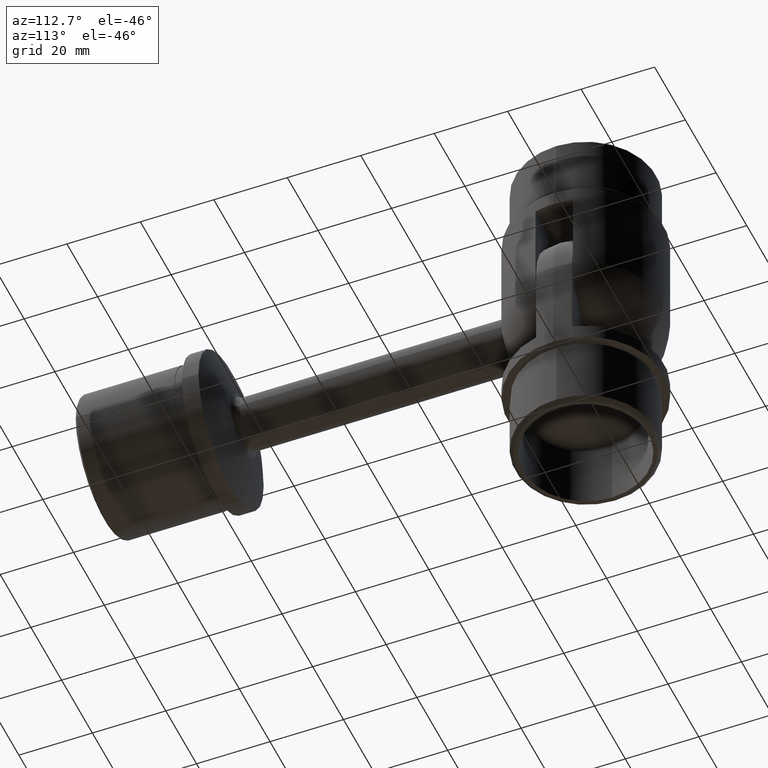
[diagram: clean part render]
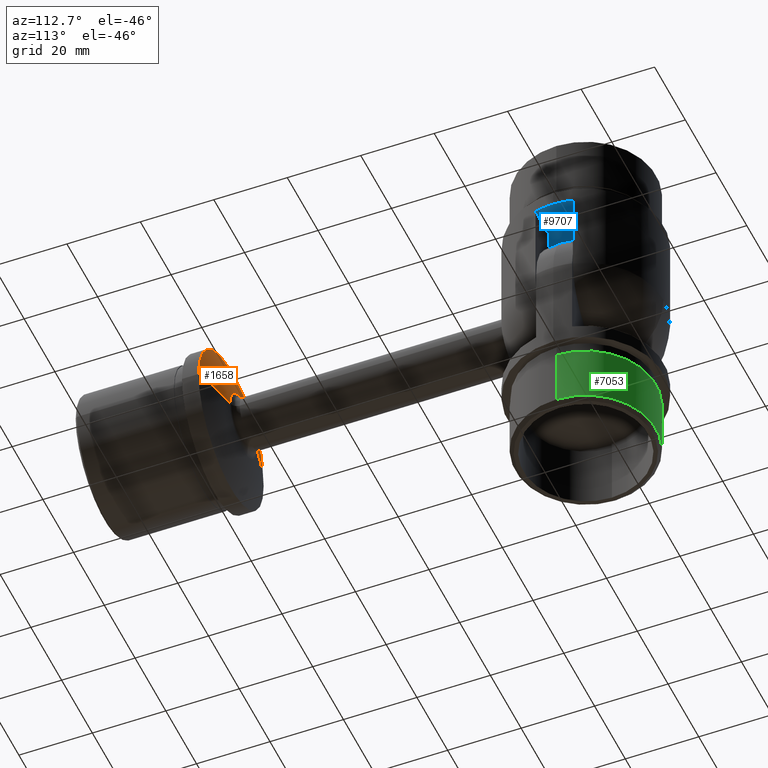
[diagram: same view with three faces highlighted in distinct colors, each labeled with its STEP entity id]
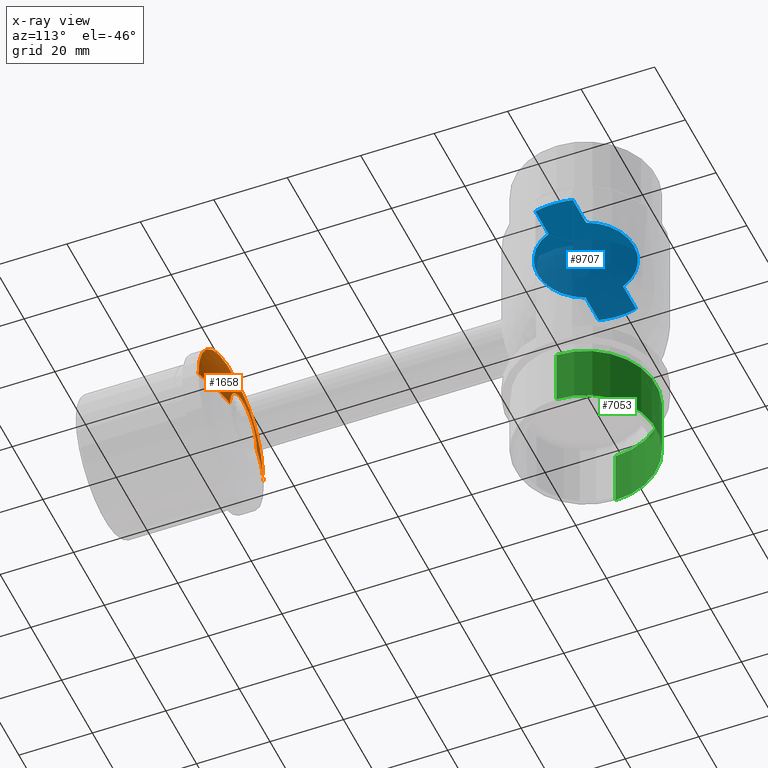
[diagram: x-ray of the same camera — body ghosted, the three highlighted faces saturated]
A machine part, auxiliary view with three faces highlighted in distinct colors.
The next image is the same camera in x-ray (body ghosted, the three faces saturated) — at least one of them is partly hidden behind the body in this view.
Their STEP definitions:

[orange] entity #1658 — the highlighted toroidal blend (fillet) surface has major radius 0.0134 mm and minor (blend) radius 58.18 mm.
#1410 = EDGE_CURVE ( 'NONE', #5558, #11201, #2520, .T. ) ;
#1530 = CIRCLE ( 'NONE', #13320, 58.18000000000000682 ) ;
#1658 = ADVANCED_FACE ( 'NONE', ( #3796 ), #16740, .T. ) ;
#1805 = ORIENTED_EDGE ( 'NONE', *, *, #1410, .T. ) ;
#2455 = DIRECTION ( 'NONE',  ( -1.000000000000000000, -8.356086107788088699E-18, 0.000000000000000000 ) ) ;
#2468 = DIRECTION ( 'NONE',  ( -1.000000000000000000, 0.000000000000000000, 0.000000000000000000 ) ) ;
#2520 = CIRCLE ( 'NONE', #9580, 58.18000000000000682 ) ;
#3522 = VERTEX_POINT ( 'NONE', #15324 ) ;
#3796 = FACE_OUTER_BOUND ( 'NONE', #19763, .T. ) ;
#4182 = CARTESIAN_POINT ( 'NONE',  ( 4.319868030996931729E-16, -19.68523686224740743, 0.000000000000000000 ) ) ;
#4271 = DIRECTION ( 'NONE',  ( -8.356086107788088699E-18, 1.000000000000000000, -0.000000000000000000 ) ) ;
#4448 = VERTEX_POINT ( 'NONE', #12821 ) ;
#4543 = CIRCLE ( 'NONE', #8028, 21.19999999999999574 ) ;
#4646 = EDGE_CURVE ( 'NONE', #3522, #4448, #1530, .T. ) ;
#5558 = VERTEX_POINT ( 'NONE', #10079 ) ;
#5646 = CARTESIAN_POINT ( 'NONE',  ( 0.01338851580684474740, -19.68523686224740743, 1.639620302818563299E-18 ) ) ;
#7334 = DIRECTION ( 'NONE',  ( 1.000000000000000000, 0.000000000000000000, 1.224646799147353454E-16 ) ) ;
#7873 = EDGE_CURVE ( 'NONE', #3522, #5558, #4543, .T. ) ;
#8028 = AXIS2_PLACEMENT_3D ( 'NONE', #9234, #12799, #10873 ) ;
#8367 = DIRECTION ( 'NONE',  ( -1.000000000000000000, 0.000000000000000000, 0.000000000000000000 ) ) ;
#9234 = CARTESIAN_POINT ( 'NONE',  ( -2.089021526947012160E-17, 34.50000000000000000, 0.000000000000000000 ) ) ;
#9580 = AXIS2_PLACEMENT_3D ( 'NONE', #5646, #17207, #7334 ) ;
#10079 = CARTESIAN_POINT ( 'NONE',  ( 21.19999999999999574, 34.50000000000000000, 2.596251214192388375E-15 ) ) ;
#10873 = DIRECTION ( 'NONE',  ( -1.000000000000000000, 0.000000000000000000, 0.000000000000000000 ) ) ;
#10917 = CARTESIAN_POINT ( 'NONE',  ( -4.881980495860678147E-17, 37.84242483010144298, 0.000000000000000000 ) ) ;
#11201 = VERTEX_POINT ( 'NONE', #15493 ) ;
#11257 = ORIENTED_EDGE ( 'NONE', *, *, #18771, .F. ) ;
#12186 = AXIS2_PLACEMENT_3D ( 'NONE', #4182, #14077, #2455 ) ;
#12799 = DIRECTION ( 'NONE',  ( -8.356086107788088699E-18, 1.000000000000000000, -0.000000000000000000 ) ) ;
#12821 = CARTESIAN_POINT ( 'NONE',  ( -8.701342257088962029, 37.84242483010144298, 0.000000000000000000 ) ) ;
#13320 = AXIS2_PLACEMENT_3D ( 'NONE', #16577, #16795, #8367 ) ;
#14077 = DIRECTION ( 'NONE',  ( -8.356086107788088699E-18, 1.000000000000000000, -0.000000000000000000 ) ) ;
#14560 = ORIENTED_EDGE ( 'NONE', *, *, #7873, .T. ) ;
#14982 = CIRCLE ( 'NONE', #17664, 8.701342257088962029 ) ;
#15324 = CARTESIAN_POINT ( 'NONE',  ( -21.19999999999999574, 34.50000000000000000, 0.000000000000000000 ) ) ;
#15493 = CARTESIAN_POINT ( 'NONE',  ( 8.701342257088962029, 37.84242483010144298, 1.830929154267673707E-15 ) ) ;
#16577 = CARTESIAN_POINT ( 'NONE',  ( -0.01338851580684388351, -19.68523686224740743, 0.000000000000000000 ) ) ;
#16740 = TOROIDAL_SURFACE ( 'NONE', #12186, 0.01338851580684431546, 58.18000000000000682 ) ;
#16795 = DIRECTION ( 'NONE',  ( 0.000000000000000000, -0.000000000000000000, -1.000000000000000000 ) ) ;
#17207 = DIRECTION ( 'NONE',  ( -1.224646799147353207E-16, -1.023325410530234757E-33, 1.000000000000000000 ) ) ;
#17664 = AXIS2_PLACEMENT_3D ( 'NONE', #10917, #4271, #2468 ) ;
#18771 = EDGE_CURVE ( 'NONE', #4448, #11201, #14982, .T. ) ;
#19763 = EDGE_LOOP ( 'NONE', ( #14560, #1805, #11257, #20457 ) ) ;
#20457 = ORIENTED_EDGE ( 'NONE', *, *, #4646, .F. ) ;

[blue] entity #9707 — the highlighted planar face has unit normal (0, 0, -1).
#304 = CARTESIAN_POINT ( 'NONE',  ( -1.925929944387235853E-31, 0.000000000000000000, 4.000000000000000000 ) ) ;
#448 = CIRCLE ( 'NONE', #16749, 13.10000000000000142 ) ;
#491 = EDGE_CURVE ( 'NONE', #6960, #3324, #10564, .T. ) ;
#536 = CARTESIAN_POINT ( 'NONE',  ( -21.19999999999997442, 5.099999999999993427, 4.000000000000000000 ) ) ;
#707 = CARTESIAN_POINT ( 'NONE',  ( -21.19999999999997442, -5.099999999999993427, 4.000000000000003553 ) ) ;
#781 = DIRECTION ( 'NONE',  ( 1.000000000000000000, 0.000000000000000000, 0.000000000000000000 ) ) ;
#1000 = CIRCLE ( 'NONE', #16546, 21.19999999999999929 ) ;
#1024 = EDGE_CURVE ( 'NONE', #18504, #7874, #448, .T. ) ;
#1222 = AXIS2_PLACEMENT_3D ( 'NONE', #5320, #8598, #20135 ) ;
#1475 = DIRECTION ( 'NONE',  ( -0.000000000000000000, -0.000000000000000000, -1.000000000000000000 ) ) ;
#1969 = DIRECTION ( 'NONE',  ( 0.000000000000000000, 1.000000000000000000, -3.273063162220390819E-16 ) ) ;
#1994 = CARTESIAN_POINT ( 'NONE',  ( 20.57741480361420372, 5.099999999999993427, 4.000000000000000000 ) ) ;
#2127 = VERTEX_POINT ( 'NONE', #17100 ) ;
#2449 = EDGE_CURVE ( 'NONE', #8510, #2127, #6892, .T. ) ;
#3107 = CARTESIAN_POINT ( 'NONE',  ( 0.000000000000000000, 13.10000000000000142, 4.000000000000003553 ) ) ;
#3158 = VECTOR ( 'NONE', #5851, 1000.000000000000000 ) ;
#3210 = DIRECTION ( 'NONE',  ( -0.000000000000000000, -0.000000000000000000, -1.000000000000000000 ) ) ;
#3324 = VERTEX_POINT ( 'NONE', #10081 ) ;
#3656 = VERTEX_POINT ( 'NONE', #18953 ) ;
#3935 = LINE ( 'NONE', #14003, #3158 ) ;
#4089 = LINE ( 'NONE', #707, #5131 ) ;
#4420 = ORIENTED_EDGE ( 'NONE', *, *, #14760, .F. ) ;
#4465 = AXIS2_PLACEMENT_3D ( 'NONE', #13037, #3210, #4814 ) ;
#4493 = EDGE_CURVE ( 'NONE', #10916, #6960, #12157, .T. ) ;
#4814 = DIRECTION ( 'NONE',  ( 1.000000000000000000, 0.000000000000000000, 0.000000000000000000 ) ) ;
#4949 = DIRECTION ( 'NONE',  ( 0.000000000000000000, 0.000000000000000000, 1.000000000000000000 ) ) ;
#5131 = VECTOR ( 'NONE', #781, 1000.000000000000000 ) ;
#5320 = CARTESIAN_POINT ( 'NONE',  ( 0.000000000000000000, 0.000000000000000000, 4.000000000000003553 ) ) ;
#5539 = CARTESIAN_POINT ( 'NONE',  ( -21.19999999999999929, -5.900520662951090717E-31, 4.000000000000000000 ) ) ;
#5803 = EDGE_CURVE ( 'NONE', #17619, #7874, #4089, .T. ) ;
#5851 = DIRECTION ( 'NONE',  ( 1.000000000000000000, 0.000000000000000000, 0.000000000000000000 ) ) ;
#6324 = FACE_OUTER_BOUND ( 'NONE', #9550, .T. ) ;
#6595 = DIRECTION ( 'NONE',  ( 0.000000000000000000, -3.401418580346680819E-16, -1.000000000000000000 ) ) ;
#6892 = CIRCLE ( 'NONE', #17737, 21.19999999999999929 ) ;
#6960 = VERTEX_POINT ( 'NONE', #3107 ) ;
#7765 = ORIENTED_EDGE ( 'NONE', *, *, #2449, .F. ) ;
#7874 = VERTEX_POINT ( 'NONE', #17083 ) ;
#8085 = CARTESIAN_POINT ( 'NONE',  ( 0.000000000000000000, 0.000000000000000000, 4.000000000000003553 ) ) ;
#8510 = VERTEX_POINT ( 'NONE', #1994 ) ;
#8598 = DIRECTION ( 'NONE',  ( -0.000000000000000000, -0.000000000000000000, -1.000000000000000000 ) ) ;
#8632 = EDGE_CURVE ( 'NONE', #17619, #16563, #19297, .T. ) ;
#9026 = DIRECTION ( 'NONE',  ( 1.000000000000000000, 0.000000000000000000, 0.000000000000000000 ) ) ;
#9120 = EDGE_CURVE ( 'NONE', #18504, #3656, #10468, .T. ) ;
#9350 = VECTOR ( 'NONE', #9026, 1000.000000000000000 ) ;
#9550 = EDGE_LOOP ( 'NONE', ( #20521, #15180, #9653, #7765, #19057, #15604, #13667, #4420, #12007, #15085, #9733 ) ) ;
#9653 = ORIENTED_EDGE ( 'NONE', *, *, #11622, .F. ) ;
#9707 = ADVANCED_FACE ( 'NONE', ( #6324 ), #19843, .T. ) ;
#9733 = ORIENTED_EDGE ( 'NONE', *, *, #5803, .T. ) ;
#9922 = CARTESIAN_POINT ( 'NONE',  ( -1.925929944387235853E-31, 0.000000000000000000, 4.000000000000000000 ) ) ;
#10081 = CARTESIAN_POINT ( 'NONE',  ( 12.06648250319868332, 5.099999999999993427, 4.000000000000000000 ) ) ;
#10437 = DIRECTION ( 'NONE',  ( 1.000000000000000000, 0.000000000000000000, 0.000000000000000000 ) ) ;
#10468 = LINE ( 'NONE', #20320, #17704 ) ;
#10564 = CIRCLE ( 'NONE', #1222, 13.10000000000000142 ) ;
#10916 = VERTEX_POINT ( 'NONE', #19357 ) ;
#11124 = LINE ( 'NONE', #536, #9350 ) ;
#11176 = DIRECTION ( 'NONE',  ( 1.000000000000000000, 0.000000000000000000, 0.000000000000000000 ) ) ;
#11301 = CARTESIAN_POINT ( 'NONE',  ( -20.57741480361415753, 5.099999999999993427, 4.000000000000000000 ) ) ;
#11496 = DIRECTION ( 'NONE',  ( 0.000000000000000000, 1.000000000000000000, -3.273063162220390819E-16 ) ) ;
#11622 = EDGE_CURVE ( 'NONE', #2127, #3656, #14047, .T. ) ;
#11971 = DIRECTION ( 'NONE',  ( 0.000000000000000000, 1.000000000000000000, -3.273063162220390819E-16 ) ) ;
#12007 = ORIENTED_EDGE ( 'NONE', *, *, #18539, .F. ) ;
#12157 = CIRCLE ( 'NONE', #4465, 13.10000000000000142 ) ;
#13037 = CARTESIAN_POINT ( 'NONE',  ( 0.000000000000000000, 0.000000000000000000, 4.000000000000003553 ) ) ;
#13149 = CARTESIAN_POINT ( 'NONE',  ( 12.06648250319868865, -5.099999999999993427, 4.000000000000003553 ) ) ;
#13667 = ORIENTED_EDGE ( 'NONE', *, *, #4493, .F. ) ;
#13859 = AXIS2_PLACEMENT_3D ( 'NONE', #9922, #21371, #11496 ) ;
#14003 = CARTESIAN_POINT ( 'NONE',  ( -21.19999999999997442, 5.099999999999993427, 4.000000000000000000 ) ) ;
#14047 = CIRCLE ( 'NONE', #13859, 21.19999999999999929 ) ;
#14760 = EDGE_CURVE ( 'NONE', #15639, #10916, #3935, .T. ) ;
#15085 = ORIENTED_EDGE ( 'NONE', *, *, #8632, .F. ) ;
#15180 = ORIENTED_EDGE ( 'NONE', *, *, #9120, .T. ) ;
#15604 = ORIENTED_EDGE ( 'NONE', *, *, #491, .F. ) ;
#15639 = VERTEX_POINT ( 'NONE', #11301 ) ;
#16546 = AXIS2_PLACEMENT_3D ( 'NONE', #21173, #6595, #18083 ) ;
#16547 = EDGE_CURVE ( 'NONE', #3324, #8510, #11124, .T. ) ;
#16563 = VERTEX_POINT ( 'NONE', #5539 ) ;
#16749 = AXIS2_PLACEMENT_3D ( 'NONE', #8085, #1475, #11176 ) ;
#17083 = CARTESIAN_POINT ( 'NONE',  ( -12.06648250319868865, -5.099999999999993427, 4.000000000000003553 ) ) ;
#17100 = CARTESIAN_POINT ( 'NONE',  ( 21.19999999999999929, 2.596251214192387981E-15, 4.000000000000000000 ) ) ;
#17243 = CARTESIAN_POINT ( 'NONE',  ( -1.925929944387235853E-31, 0.000000000000000000, 4.000000000000000000 ) ) ;
#17619 = VERTEX_POINT ( 'NONE', #20139 ) ;
#17704 = VECTOR ( 'NONE', #10437, 1000.000000000000000 ) ;
#17737 = AXIS2_PLACEMENT_3D ( 'NONE', #304, #20116, #1969 ) ;
#18083 = DIRECTION ( 'NONE',  ( 0.000000000000000000, 1.000000000000000000, -3.273063162220390819E-16 ) ) ;
#18504 = VERTEX_POINT ( 'NONE', #13149 ) ;
#18539 = EDGE_CURVE ( 'NONE', #16563, #15639, #1000, .T. ) ;
#18953 = CARTESIAN_POINT ( 'NONE',  ( 20.57741480361420372, -5.099999999999993427, 4.000000000000003553 ) ) ;
#19057 = ORIENTED_EDGE ( 'NONE', *, *, #16547, .F. ) ;
#19297 = CIRCLE ( 'NONE', #20465, 21.19999999999999929 ) ;
#19357 = CARTESIAN_POINT ( 'NONE',  ( -12.06648250319868154, 5.099999999999993427, 4.000000000000000000 ) ) ;
#19843 = PLANE ( 'NONE',  #20759 ) ;
#19908 = DIRECTION ( 'NONE',  ( 1.000000000000000000, 0.000000000000000000, 0.000000000000000000 ) ) ;
#20116 = DIRECTION ( 'NONE',  ( 0.000000000000000000, -3.401418580346680819E-16, -1.000000000000000000 ) ) ;
#20135 = DIRECTION ( 'NONE',  ( 1.000000000000000000, 8.881784197001252323E-16, 0.000000000000000000 ) ) ;
#20139 = CARTESIAN_POINT ( 'NONE',  ( -20.57741480361415753, -5.099999999999993427, 4.000000000000003553 ) ) ;
#20320 = CARTESIAN_POINT ( 'NONE',  ( -21.19999999999997442, -5.099999999999993427, 4.000000000000003553 ) ) ;
#20411 = DIRECTION ( 'NONE',  ( 0.000000000000000000, -3.401418580346680819E-16, -1.000000000000000000 ) ) ;
#20465 = AXIS2_PLACEMENT_3D ( 'NONE', #17243, #20411, #11971 ) ;
#20521 = ORIENTED_EDGE ( 'NONE', *, *, #1024, .F. ) ;
#20759 = AXIS2_PLACEMENT_3D ( 'NONE', #21199, #4949, #19908 ) ;
#21173 = CARTESIAN_POINT ( 'NONE',  ( -1.925929944387235853E-31, 0.000000000000000000, 4.000000000000000000 ) ) ;
#21199 = CARTESIAN_POINT ( 'NONE',  ( -1.925929944387235853E-31, 0.000000000000000000, 4.000000000000000000 ) ) ;
#21371 = DIRECTION ( 'NONE',  ( 0.000000000000000000, -3.401418580346680819E-16, -1.000000000000000000 ) ) ;

[green] entity #7053 — the highlighted cylindrical surface (partial cylindrical patch) has radius 19.15 mm, axis along (0, 0, 1).
#282 = DIRECTION ( 'NONE',  ( 1.000000000000000000, 0.000000000000000000, 0.000000000000000000 ) ) ;
#391 = LINE ( 'NONE', #19127, #21326 ) ;
#915 = DIRECTION ( 'NONE',  ( 0.000000000000000000, 0.000000000000000000, -1.000000000000000000 ) ) ;
#1235 = ORIENTED_EDGE ( 'NONE', *, *, #7164, .T. ) ;
#1355 = VERTEX_POINT ( 'NONE', #17376 ) ;
#1735 = EDGE_CURVE ( 'NONE', #21419, #14811, #17511, .T. ) ;
#1990 = CIRCLE ( 'NONE', #19098, 19.14999999999999858 ) ;
#2249 = FACE_OUTER_BOUND ( 'NONE', #6536, .T. ) ;
#2992 = EDGE_CURVE ( 'NONE', #7563, #14811, #391, .T. ) ;
#3333 = CARTESIAN_POINT ( 'NONE',  ( -19.14999999999999858, 2.345198620367181006E-15, -2.999999999999999112 ) ) ;
#3757 = CARTESIAN_POINT ( 'NONE',  ( 0.000000000000000000, 0.000000000000000000, -19.99999999999999645 ) ) ;
#4609 = LINE ( 'NONE', #6367, #6175 ) ;
#5351 = DIRECTION ( 'NONE',  ( -1.000000000000000000, 0.000000000000000000, 0.000000000000000000 ) ) ;
#6022 = EDGE_CURVE ( 'NONE', #1355, #21419, #4609, .T. ) ;
#6175 = VECTOR ( 'NONE', #6511, 1000.000000000000000 ) ;
#6367 = CARTESIAN_POINT ( 'NONE',  ( -19.14999999999999858, 2.345198620367181006E-15, -19.99999999999999645 ) ) ;
#6511 = DIRECTION ( 'NONE',  ( -0.000000000000000000, -0.000000000000000000, 1.000000000000000000 ) ) ;
#6536 = EDGE_LOOP ( 'NONE', ( #1235, #14971, #15435, #14483 ) ) ;
#7053 = ADVANCED_FACE ( 'NONE', ( #2249 ), #20868, .T. ) ;
#7164 = EDGE_CURVE ( 'NONE', #7563, #1355, #1990, .T. ) ;
#7563 = VERTEX_POINT ( 'NONE', #12889 ) ;
#10000 = AXIS2_PLACEMENT_3D ( 'NONE', #10832, #915, #5351 ) ;
#10832 = CARTESIAN_POINT ( 'NONE',  ( 0.000000000000000000, 0.000000000000000000, -2.999999999999999112 ) ) ;
#12284 = DIRECTION ( 'NONE',  ( -1.000000000000000000, 0.000000000000000000, 0.000000000000000000 ) ) ;
#12422 = CARTESIAN_POINT ( 'NONE',  ( 0.000000000000000000, 0.000000000000000000, -18.99999999999999645 ) ) ;
#12487 = CARTESIAN_POINT ( 'NONE',  ( 19.14999999999999858, 0.000000000000000000, -2.999999999999999112 ) ) ;
#12889 = CARTESIAN_POINT ( 'NONE',  ( 19.14999999999999858, 0.000000000000000000, -18.99999999999999645 ) ) ;
#14483 = ORIENTED_EDGE ( 'NONE', *, *, #2992, .F. ) ;
#14811 = VERTEX_POINT ( 'NONE', #12487 ) ;
#14971 = ORIENTED_EDGE ( 'NONE', *, *, #6022, .T. ) ;
#15394 = DIRECTION ( 'NONE',  ( -0.000000000000000000, -0.000000000000000000, 1.000000000000000000 ) ) ;
#15435 = ORIENTED_EDGE ( 'NONE', *, *, #1735, .T. ) ;
#15535 = DIRECTION ( 'NONE',  ( 0.000000000000000000, 0.000000000000000000, 1.000000000000000000 ) ) ;
#17376 = CARTESIAN_POINT ( 'NONE',  ( -19.14999999999999858, 2.345198620367181006E-15, -18.99999999999999645 ) ) ;
#17511 = CIRCLE ( 'NONE', #10000, 19.14999999999999858 ) ;
#17985 = AXIS2_PLACEMENT_3D ( 'NONE', #3757, #15394, #282 ) ;
#19098 = AXIS2_PLACEMENT_3D ( 'NONE', #12422, #15535, #12284 ) ;
#19127 = CARTESIAN_POINT ( 'NONE',  ( 19.14999999999999858, 0.000000000000000000, -19.99999999999999645 ) ) ;
#20549 = DIRECTION ( 'NONE',  ( -0.000000000000000000, -0.000000000000000000, 1.000000000000000000 ) ) ;
#20868 = CYLINDRICAL_SURFACE ( 'NONE', #17985, 19.14999999999999858 ) ;
#21326 = VECTOR ( 'NONE', #20549, 1000.000000000000000 ) ;
#21419 = VERTEX_POINT ( 'NONE', #3333 ) ;